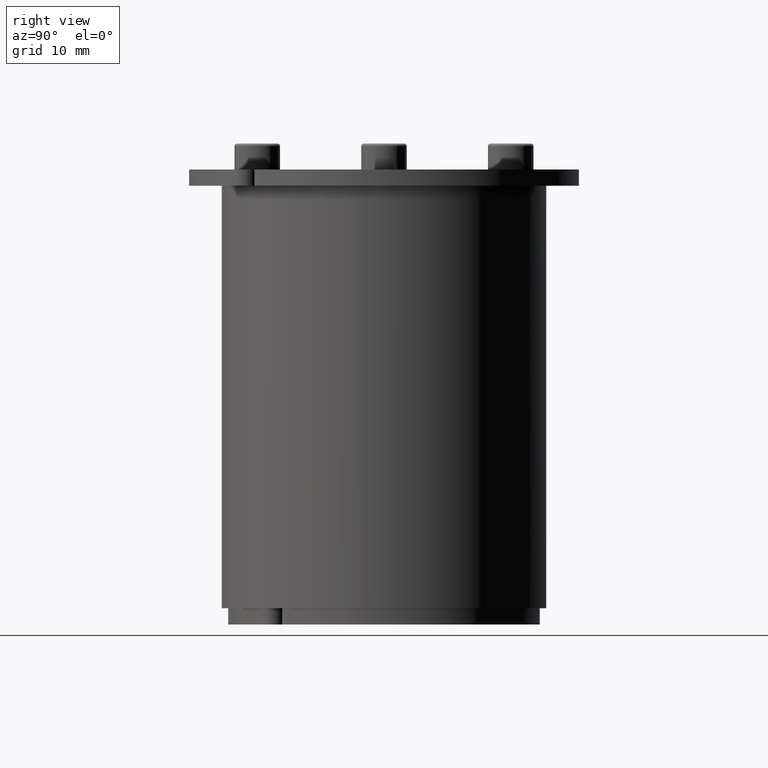
[diagram: clean part render]
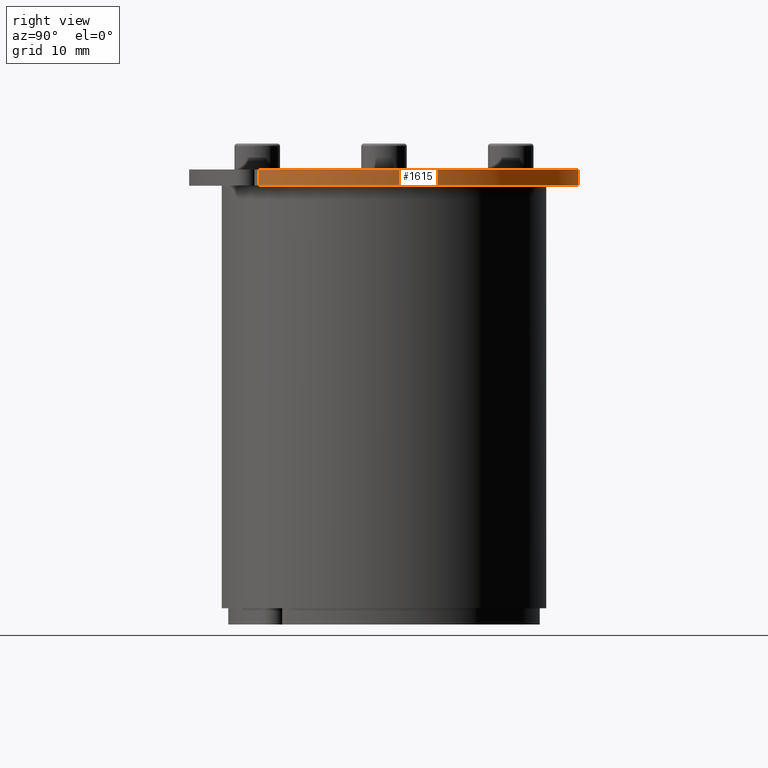
[diagram: same view with one face highlighted and labeled with its STEP entity id]
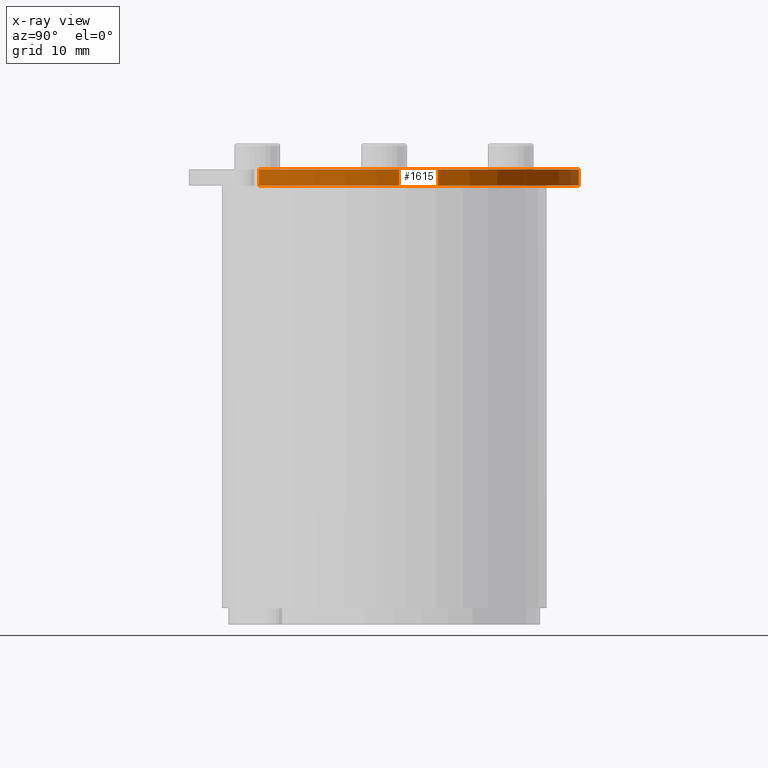
[diagram: x-ray of the same camera — body ghosted, the highlighted face saturated]
A machine part, right view. The second image highlights one B-rep face of the part: STEP entity #1615.
The next image is the same camera in x-ray: the body ghosted, the highlighted face saturated — about 0% of this face is hidden behind the body in this view.
In plain terms, the highlighted cylindrical surface (partial cylindrical patch) has radius 30 mm, axis along (-0, 0, -1).
Its self-contained STEP definition (entity closure, byte-faithful):
#1299=CARTESIAN_POINT('',(-19.234443042801722,23.022515084873273,0.0));
#1300=VERTEX_POINT('',#1299);
#1310=CARTESIAN_POINT('',(-19.234443042801722,23.022515084873273,-2.5));
#1311=VERTEX_POINT('',#1310);
#1312=CARTESIAN_POINT('',(-19.234443042801722,23.022515084873273,0.0));
#1313=DIRECTION('',(0.0,0.0,-1.0));
#1314=VECTOR('',#1313,2.5);
#1315=LINE('',#1312,#1314);
#1316=EDGE_CURVE('',#1300,#1311,#1315,.T.);
#1564=CARTESIAN_POINT('',(23.022515084872865,-19.234443042802209,0.0));
#1565=VERTEX_POINT('',#1564);
#1574=CARTESIAN_POINT('',(23.022515084872865,-19.234443042802209,-2.5));
#1575=VERTEX_POINT('',#1574);
#1583=CARTESIAN_POINT('',(23.022515084872865,-19.234443042802209,0.0));
#1584=DIRECTION('',(0.0,0.0,-1.0));
#1585=VECTOR('',#1584,2.5);
#1586=LINE('',#1583,#1585);
#1587=EDGE_CURVE('',#1565,#1575,#1586,.T.);
#1592=CARTESIAN_POINT('',(0.0,0.0,0.0));
#1593=DIRECTION('',(0.0,0.0,-1.0));
#1594=DIRECTION('',(0.767417169495762,-0.64114810142674,0.0));
#1595=AXIS2_PLACEMENT_3D('',#1592,#1593,#1594);
#1596=CYLINDRICAL_SURFACE('',#1595,29.999999999999996);
#1597=CARTESIAN_POINT('',(0.0,0.0,0.0));
#1598=DIRECTION('',(0.0,0.0,1.0));
#1599=DIRECTION('',(0.767417169495762,-0.64114810142674,0.0));
#1600=AXIS2_PLACEMENT_3D('',#1597,#1598,#1599);
#1601=CIRCLE('',#1600,29.999999999999996);
#1602=EDGE_CURVE('',#1565,#1300,#1601,.T.);
#1603=ORIENTED_EDGE('',*,*,#1602,.F.);
#1604=ORIENTED_EDGE('',*,*,#1587,.T.);
#1605=CARTESIAN_POINT('',(0.0,0.0,-2.5));
#1606=DIRECTION('',(0.0,0.0,-1.0));
#1607=DIRECTION('',(0.767417169495762,-0.64114810142674,0.0));
#1608=AXIS2_PLACEMENT_3D('',#1605,#1606,#1607);
#1609=CIRCLE('',#1608,29.999999999999996);
#1610=EDGE_CURVE('',#1311,#1575,#1609,.T.);
#1611=ORIENTED_EDGE('',*,*,#1610,.F.);
#1612=ORIENTED_EDGE('',*,*,#1316,.F.);
#1613=EDGE_LOOP('',(#1603,#1604,#1611,#1612));
#1614=FACE_OUTER_BOUND('',#1613,.T.);
#1615=ADVANCED_FACE('',(#1614),#1596,.T.);